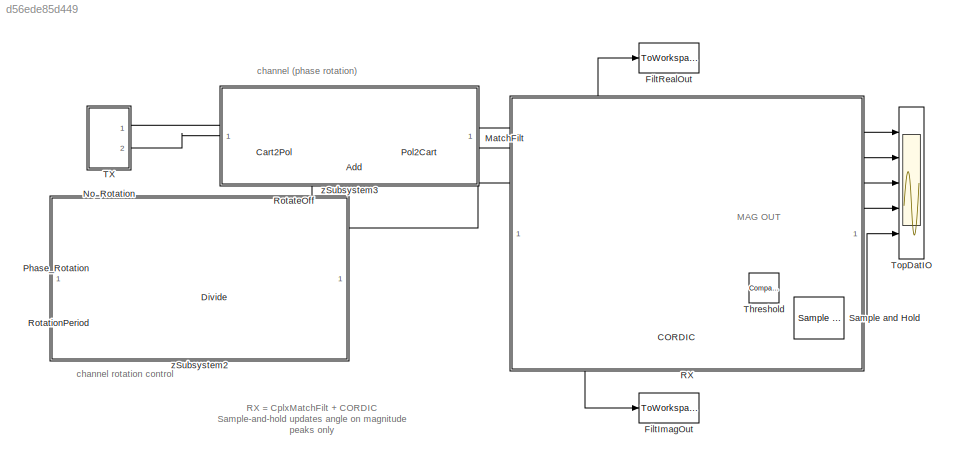
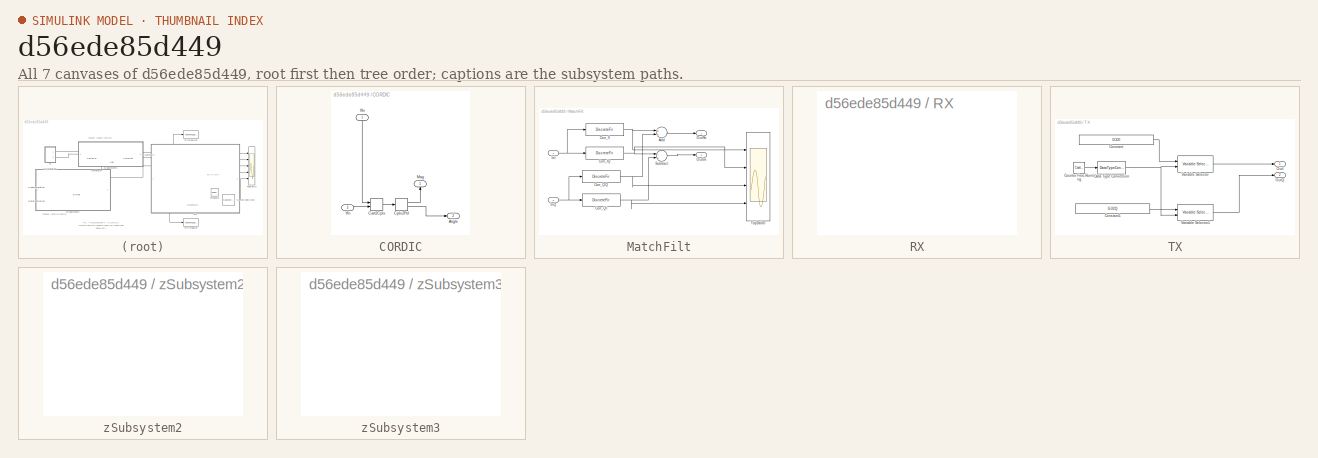
[diagram: thumbnail index - all 7 canvases of the model, root first then tree order]
MODEL slx_d56ede85d449
KIND model
CONFIG InitFcn = G32I = [-1 -1 -1 1  1 1 -1 -1   1 1 1 1  1 -1 -1 -1   -1 1 -1 1   1 -1 -1 -1   1 1 -1 -1  -1 1 -1 1];\n\nG32IR = [1 -1 1 -1 -1 -1 1 1 -1 -1 -1 1 1 -1 1 -1 -1 -1 -1 1 1 1 1 1 -1 -1 1 1  1 -1 -1 -1 ];\n\nG32Q = [ 1 1 -1 1    -1 1 1 1   1 -1 1 -1   -1 1 -1 1    1 -1 1 -1   1 -1 -1 -1   -1 1 -1 1   -1 1 -1 -1  ];\n\nG32QR = [ -1 -1 1 -1   1 -1 1 -1   -1 -1 -1 1   -1 1 -1 1   1 -1 1 -1   -1 1 -1 1   1  1 1 -...<+15ch>
BLOCK [Sum] Add
  InputSameDT = off
  OutDataTypeStr = Inherit: Inherit via internal rule
  Ports = [2, 1]
  SaturateOnIntegerOverflow = off
BLOCK [SubSystem] CORDIC
  Ports = [2, 2]
  RequestExecContextInheritance = off
BLOCK [Outport] CORDIC/Angle
  IconDisplay = Port number
  Port = 2
BLOCK [RealImagToComplex] CORDIC/Cart2Cplx
  Ports = [2, 1]
BLOCK [ComplexToMagnitudeAngle] CORDIC/Cplx2Pol
  Ports = [1, 2]
BLOCK [Outport] CORDIC/Mag
  IconDisplay = Port number
BLOCK [Inport] CORDIC/XIn
  IconDisplay = Port number
BLOCK [Inport] CORDIC/YIn
  IconDisplay = Port number
  Port = 2
BLOCK [Reference] Cart2Pol  REF=simulink_extras/Transformations/Cartesian to
Polar
  Ports = [2, 2]
  SourceBlock = simulink_extras/Transformations/Cartesian to\nPolar
  SourceType = Cart2Polar
BLOCK [Product] Divide
  InputSameDT = off
  Inputs = */
  OutDataTypeStr = Inherit: Inherit via internal rule
  Ports = [2, 1]
  RndMeth = Floor
  SaturateOnIntegerOverflow = off
BLOCK [ToWorkspace] FiltImagOut
  FixptAsFi = on
  MaxDataPoints = inf
  Ports = [1]
  SampleTime = -1
  Save2DSignal = 3-D array (concatenate along third dimension)
  SaveFormat = Structure
  VariableName = FiltOut_Im
BLOCK [ToWorkspace] FiltRealOut
  FixptAsFi = on
  MaxDataPoints = inf
  Ports = [1]
  SampleTime = -1
  Save2DSignal = 3-D array (concatenate along third dimension)
  SaveFormat = Structure
  VariableName = FiltOut_Re
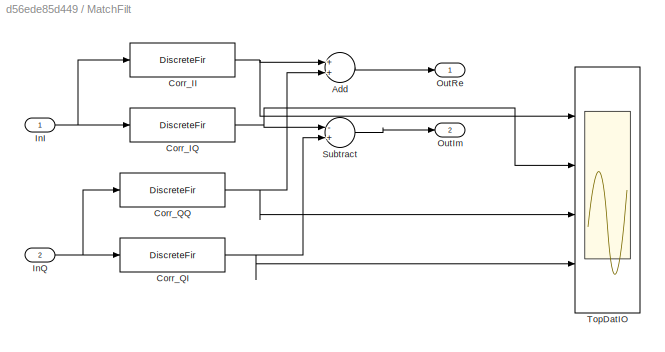
BLOCK [SubSystem] MatchFilt
  Ports = [2, 2]
  RequestExecContextInheritance = off
BLOCK [Sum] MatchFilt/Add
  InputSameDT = off
  OutDataTypeStr = Inherit: Inherit via internal rule
  Ports = [2, 1]
  SaturateOnIntegerOverflow = off
BLOCK [DiscreteFir] MatchFilt/Corr_II
  Coefficients = G32IR
  Ports = [1, 1]
BLOCK [DiscreteFir] MatchFilt/Corr_IQ
  Coefficients = G32QR
  Ports = [1, 1]
BLOCK [DiscreteFir] MatchFilt/Corr_QI
  Coefficients = G32IR
  Ports = [1, 1]
BLOCK [DiscreteFir] MatchFilt/Corr_QQ
  Coefficients = G32QR
  Ports = [1, 1]
BLOCK [Inport] MatchFilt/InI
  IconDisplay = Port number
BLOCK [Inport] MatchFilt/InQ
  IconDisplay = Port number
  Port = 2
BLOCK [Outport] MatchFilt/OutIm
  IconDisplay = Port number
  Port = 2
BLOCK [Outport] MatchFilt/OutRe
  IconDisplay = Port number
BLOCK [Sum] MatchFilt/Subtract
  InputSameDT = off
  Inputs = -+
  OutDataTypeStr = Inherit: Inherit via internal rule
  Ports = [2, 1]
  SaturateOnIntegerOverflow = off
BLOCK [Scope] MatchFilt/TopDatIO
  DataFormat = StructureWithTime
  Floating = off
  MaxDataPoints = 220000
  NumInputPorts = 4
  Ports = [4]
  SampleTime = 0
  ShowLegends = off
  YMax = 2.2~33.6~42.5~33.6
  YMin = -2.2~30.4~30~30.4
  ZoomMode = xonly
BLOCK [Constant] No_Rotation
  Value = 0
BLOCK [Reference] Phase_Rotation  REF=simulink/Sources/Counter
Free-Running
  NumBits = 16
  Ports = [0, 1]
  SourceBlock = simulink/Sources/Counter\nFree-Running
  SourceType = Counter Free-Running
  tsamp = -1
BLOCK [Reference] Pol2Cart  REF=simulink_extras/Transformations/Polar to
Cartesian
  Ports = [2, 2]
  SourceBlock = simulink_extras/Transformations/Polar to\nCartesian
  SourceType = Polar2Cart
BLOCK [SubSystem] RX
  Ports = []
  RequestExecContextInheritance = off
BLOCK [ManualSwitch] RotateOff
  CurrentSetting = 0
BLOCK [Constant] RotationPeriod
  Value = 1000
BLOCK [Reference] Sample and Hold  REF=dspsigops/Sample
and Hold
  Ports = [1, 1, 0, 1]
  SourceBlock = dspsigops/Sample\nand Hold
  SourceType = Sample and Hold
  initCond = 0
  latchinput = off
  trig = Rising edge
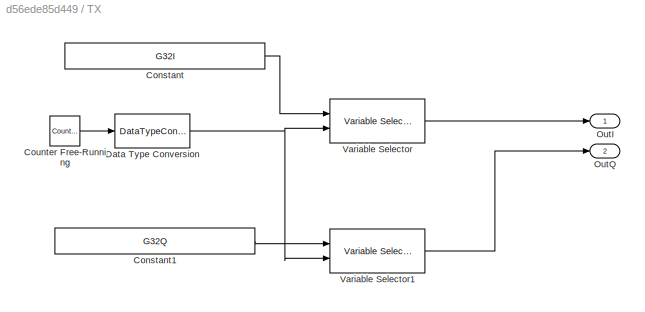
BLOCK [SubSystem] TX
  Ports = [0, 2]
  RequestExecContextInheritance = off
BLOCK [Constant] TX/Constant
  SampleTime = 0.01
  Value = G32I
BLOCK [Constant] TX/Constant1
  SampleTime = 0.01
  Value = G32Q
BLOCK [Reference] TX/Counter Free-Running  REF=simulink/Sources/Counter
Free-Running
  NumBits = 5
  Ports = [0, 1]
  SourceBlock = simulink/Sources/Counter\nFree-Running
  SourceType = Counter Free-Running
  tsamp = .01
BLOCK [DataTypeConversion] TX/Data Type Conversion
  OutDataTypeStr = int8
  RndMeth = Floor
  SaturateOnIntegerOverflow = off
BLOCK [Outport] TX/OutI
  IconDisplay = Port number
BLOCK [Outport] TX/OutQ
  IconDisplay = Port number
  Port = 2
BLOCK [Reference] TX/Variable Selector  REF=dspindex/Variable
Selector
  Elements = [1 3]
  FillMode = on
  FillValues = 0
  IdxMode = Variable
  NumInputs = 1
  Ports = [2, 1]
  ShowPortLabels = off
  SourceBlock = dspindex/Variable\nSelector
  SourceType = Variable Selector
  ZerOneIdxMode = Zero-based
  errmode = Clip Index
  rowsOrCols = Rows
BLOCK [Reference] TX/Variable Selector1  REF=dspindex/Variable
Selector
  Elements = [1 3]
  FillMode = on
  FillValues = 0
  IdxMode = Variable
  NumInputs = 1
  Ports = [2, 1]
  ShowPortLabels = off
  SourceBlock = dspindex/Variable\nSelector
  SourceType = Variable Selector
  ZerOneIdxMode = Zero-based
  errmode = Clip Index
  rowsOrCols = Rows
BLOCK [Reference] Threshold  REF=simulink/Logic and Bit
Operations/Compare
To Constant
  OutDataTypeStr = boolean
  Ports = [1, 1]
  SourceBlock = simulink/Logic and Bit\nOperations/Compare\nTo Constant
  SourceType = Compare To Constant
  ZeroCross = on
  const = 50
  relop = >
BLOCK [Scope] TopDatIO
  DataFormat = StructureWithTime
  Floating = off
  MaxDataPoints = 220000
  NumInputPorts = 5
  Ports = [5]
  SampleTime = 0
  SaveName = ScopeData5
  ShowLegends = off
  YMax = 2.2~33.6~42.5~33.6~5
  YMin = -2.2~30.4~30~30.4~-5
  ZoomMode = xonly
BLOCK [SubSystem] zSubsystem2
  Ports = []
  RequestExecContextInheritance = off
BLOCK [SubSystem] zSubsystem3
  Ports = []
  RequestExecContextInheritance = off
ANNOTATION (root): MAG OUT
ANNOTATION (root): RX = CplxMatchFilt + CORDIC Sample-and-hold updates angle on magnitude peaks only
ANNOTATION (root): channel (phase rotation)
ANNOTATION (root): channel rotation control
LINE Add:1 -> Pol2Cart:2
LINE CORDIC/Cart2Cplx:1 -> CORDIC/Cplx2Pol:1
LINE CORDIC/Cplx2Pol:1 -> CORDIC/Mag:1
LINE CORDIC/Cplx2Pol:2 -> CORDIC/Angle:1
LINE CORDIC/XIn:1 -> CORDIC/Cart2Cplx:1
LINE CORDIC/YIn:1 -> CORDIC/Cart2Cplx:2
NET CORDIC:1 -> Threshold:1, TopDatIO:4
LINE CORDIC:2 -> Sample and Hold:1
LINE Cart2Pol:1 -> Pol2Cart:1
LINE Cart2Pol:2 -> Add:1
LINE Divide:1 -> RotateOff:2
LINE MatchFilt/Add:1 -> MatchFilt/OutRe:1
NET MatchFilt/Corr_II:1 -> MatchFilt/Add:1, MatchFilt/TopDatIO:1
NET MatchFilt/Corr_IQ:1 -> MatchFilt/Subtract:1, MatchFilt/TopDatIO:2
NET MatchFilt/Corr_QI:1 -> MatchFilt/Subtract:2, MatchFilt/TopDatIO:4
NET MatchFilt/Corr_QQ:1 -> MatchFilt/Add:2, MatchFilt/TopDatIO:3
NET MatchFilt/InI:1 -> MatchFilt/Corr_II:1, MatchFilt/Corr_IQ:1
NET MatchFilt/InQ:1 -> MatchFilt/Corr_QI:1, MatchFilt/Corr_QQ:1
LINE MatchFilt/Subtract:1 -> MatchFilt/OutIm:1
NET MatchFilt:1 -> CORDIC:1, FiltRealOut:1, TopDatIO:1
NET MatchFilt:2 -> CORDIC:2, FiltImagOut:1, TopDatIO:2
LINE No_Rotation:1 -> RotateOff:1
LINE Phase_Rotation:1 -> Divide:1
LINE Pol2Cart:1 -> MatchFilt:1
LINE Pol2Cart:2 -> MatchFilt:2
NET RotateOff:1 -> Add:2, TopDatIO:3
LINE RotationPeriod:1 -> Divide:2
LINE Sample and Hold:1 -> TopDatIO:5
LINE TX/Constant1:1 -> TX/Variable Selector1:1
LINE TX/Constant:1 -> TX/Variable Selector:1
LINE TX/Counter Free-Running:1 -> TX/Data Type Conversion:1
NET TX/Data Type Conversion:1 -> TX/Variable Selector1:2, TX/Variable Selector:2
LINE TX/Variable Selector1:1 -> TX/OutQ:1
LINE TX/Variable Selector:1 -> TX/OutI:1
LINE TX:1 -> Cart2Pol:1
LINE TX:2 -> Cart2Pol:2
LINE Threshold:1 -> Sample and Hold:trigger
note: NET lines group one-source signal fan-out (src -> all destinations, sorted); 1:1 wires keep LINE
